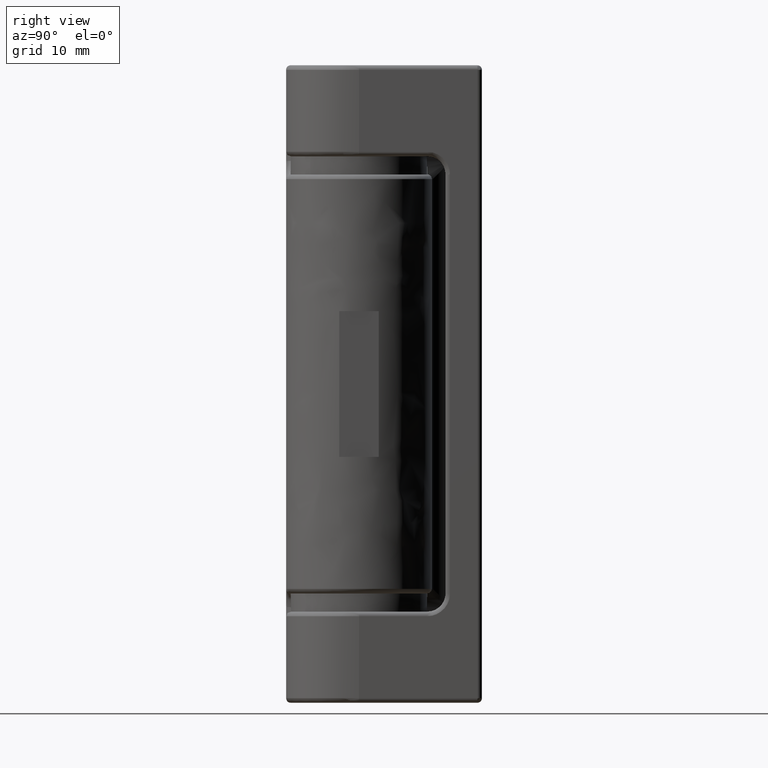
[diagram: clean part render]
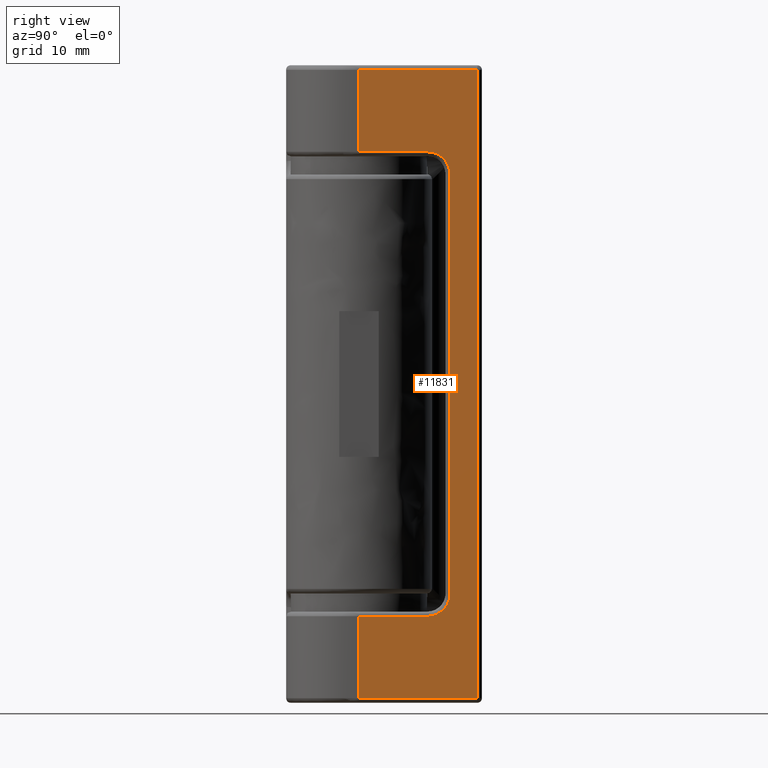
[diagram: same view with one face highlighted and labeled with its STEP entity id]
A machine part, right view. The second image highlights one B-rep face of the part: STEP entity #11831.
In plain terms, the highlighted face is a freeform B-spline surface patch.
Its self-contained STEP definition (entity closure, byte-faithful):
#10771=CARTESIAN_POINT('',(8.0,-2.842171E-014,60.500000000497899));
#10772=VERTEX_POINT('',#10771);
#10803=CARTESIAN_POINT('',(8.0,-2.842171E-014,69.500000000000000));
#10804=VERTEX_POINT('',#10803);
#10805=CARTESIAN_POINT('',(8.0,-2.842171E-014,69.500000000000000));
#10806=CARTESIAN_POINT('',(8.0,-2.842171E-014,60.500000000497899));
#10807=QUASI_UNIFORM_CURVE('',1,(#10805,#10806),.UNSPECIFIED.,.F.,.U.);
#10808=EDGE_CURVE('',#10804,#10772,#10807,.T.);
#10986=CARTESIAN_POINT('',(8.0,-2.842171E-014,0.499999999999945));
#10987=VERTEX_POINT('',#10986);
#11143=CARTESIAN_POINT('',(8.0,13.0,0.500000000000000));
#11144=VERTEX_POINT('',#11143);
#11160=CARTESIAN_POINT('',(8.0,-2.842171E-014,0.499999999999945));
#11161=CARTESIAN_POINT('',(8.0,13.0,0.500000000000000));
#11162=QUASI_UNIFORM_CURVE('',1,(#11160,#11161),.UNSPECIFIED.,.F.,.U.);
#11163=EDGE_CURVE('',#10987,#11144,#11162,.T.);
#11189=CARTESIAN_POINT('',(8.0,13.0,69.500000000000000));
#11190=VERTEX_POINT('',#11189);
#11191=CARTESIAN_POINT('',(8.0,13.0,69.500000000000000));
#11192=CARTESIAN_POINT('',(8.0,-2.842171E-014,69.500000000000000));
#11193=QUASI_UNIFORM_CURVE('',1,(#11191,#11192),.UNSPECIFIED.,.F.,.U.);
#11194=EDGE_CURVE('',#11190,#10804,#11193,.T.);
#11434=CARTESIAN_POINT('',(8.0,-2.842171E-014,9.499999999613040));
#11435=VERTEX_POINT('',#11434);
#11530=CARTESIAN_POINT('',(8.0,7.500000000016350,9.499999999653420));
#11531=VERTEX_POINT('',#11530);
#11547=CARTESIAN_POINT('',(8.0,7.500000000016350,9.499999999653420));
#11548=CARTESIAN_POINT('',(8.0,-2.842171E-014,9.499999999613040));
#11549=QUASI_UNIFORM_CURVE('',1,(#11547,#11548),.UNSPECIFIED.,.F.,.U.);
#11550=EDGE_CURVE('',#11531,#11435,#11549,.T.);
#11611=CARTESIAN_POINT('',(8.0,10.000000000002860,11.999999999653420));
#11612=VERTEX_POINT('',#11611);
#11628=CARTESIAN_POINT('',(8.0,10.000000000002871,11.999999999653420));
#11629=CARTESIAN_POINT('',(8.0,10.000000000002869,9.499999999653419));
#11630=CARTESIAN_POINT('',(8.0,7.500000000002870,9.499999999653419));
#11638=(BOUNDED_CURVE()B_SPLINE_CURVE(2,(#11628,#11629,#11630),.UNSPECIFIED.,.F.,.U.)CURVE()GEOMETRIC_REPRESENTATION_ITEM()QUASI_UNIFORM_CURVE()RATIONAL_B_SPLINE_CURVE((1.0,0.707106781186548,1.0))REPRESENTATION_ITEM(''));
#11639=EDGE_CURVE('',#11612,#11531,#11638,.T.);
#11658=CARTESIAN_POINT('',(8.0,7.500000000021670,60.500000000441297));
#11659=VERTEX_POINT('',#11658);
#11673=CARTESIAN_POINT('',(8.0,-2.842171E-014,60.500000000497899));
#11674=CARTESIAN_POINT('',(8.0,7.500000000021670,60.500000000441297));
#11675=QUASI_UNIFORM_CURVE('',1,(#11673,#11674),.UNSPECIFIED.,.F.,.U.);
#11676=EDGE_CURVE('',#10772,#11659,#11675,.T.);
#11697=CARTESIAN_POINT('',(8.0,10.000000000002821,58.000000000441297));
#11698=VERTEX_POINT('',#11697);
#11711=CARTESIAN_POINT('',(8.0,10.000000000002821,58.000000000441297));
#11712=CARTESIAN_POINT('',(8.0,10.000000000002860,11.999999999653420));
#11713=QUASI_UNIFORM_CURVE('',1,(#11711,#11712),.UNSPECIFIED.,.F.,.U.);
#11714=EDGE_CURVE('',#11698,#11612,#11713,.T.);
#11739=CARTESIAN_POINT('',(8.0,7.500000000021669,60.500000000441297));
#11740=CARTESIAN_POINT('',(8.0,10.000000000002812,60.500000000422439));
#11741=CARTESIAN_POINT('',(8.0,10.000000000002810,58.000000000441297));
#11749=(BOUNDED_CURVE()B_SPLINE_CURVE(2,(#11739,#11740,#11741),.UNSPECIFIED.,.F.,.U.)CURVE()GEOMETRIC_REPRESENTATION_ITEM()QUASI_UNIFORM_CURVE()RATIONAL_B_SPLINE_CURVE((1.0,0.707106781189215,1.0))REPRESENTATION_ITEM(''));
#11750=EDGE_CURVE('',#11659,#11698,#11749,.T.);
#11799=CARTESIAN_POINT('',(8.0,-2.842171E-014,9.499999999613040));
#11800=CARTESIAN_POINT('',(8.0,-2.842171E-014,0.499999999999945));
#11801=QUASI_UNIFORM_CURVE('',1,(#11799,#11800),.UNSPECIFIED.,.F.,.U.);
#11802=EDGE_CURVE('',#11435,#10987,#11801,.T.);
#11810=CARTESIAN_POINT('',(8.0,-0.649349974803506,72.946549866264618));
#11811=CARTESIAN_POINT('',(8.0,-0.649349974803506,-2.946551716988891));
#11812=CARTESIAN_POINT('',(8.0,13.649350323490649,72.946549866264618));
#11813=CARTESIAN_POINT('',(8.0,13.649350323490649,-2.946551716988891));
#11814=B_SPLINE_SURFACE_WITH_KNOTS('',1,1,((#11810,#11812),(#11811,#11813)),.UNSPECIFIED.,.F.,.F.,.U.,(2,2),(2,2),(0.0,75.893101583253511),(0.0,14.298700298294159),.UNSPECIFIED.);
#11815=ORIENTED_EDGE('',*,*,#11639,.T.);
#11816=ORIENTED_EDGE('',*,*,#11550,.T.);
#11817=ORIENTED_EDGE('',*,*,#11802,.T.);
#11818=ORIENTED_EDGE('',*,*,#11163,.T.);
#11819=CARTESIAN_POINT('',(8.0,13.0,0.500000000000000));
#11820=CARTESIAN_POINT('',(8.0,13.0,69.500000000000000));
#11821=QUASI_UNIFORM_CURVE('',1,(#11819,#11820),.UNSPECIFIED.,.F.,.U.);
#11822=EDGE_CURVE('',#11144,#11190,#11821,.T.);
#11823=ORIENTED_EDGE('',*,*,#11822,.T.);
#11824=ORIENTED_EDGE('',*,*,#11194,.T.);
#11825=ORIENTED_EDGE('',*,*,#10808,.T.);
#11826=ORIENTED_EDGE('',*,*,#11676,.T.);
#11827=ORIENTED_EDGE('',*,*,#11750,.T.);
#11828=ORIENTED_EDGE('',*,*,#11714,.T.);
#11829=EDGE_LOOP('',(#11815,#11816,#11817,#11818,#11823,#11824,#11825,#11826,#11827,#11828));
#11830=FACE_OUTER_BOUND('',#11829,.T.);
#11831=ADVANCED_FACE('',(#11830),#11814,.T.);